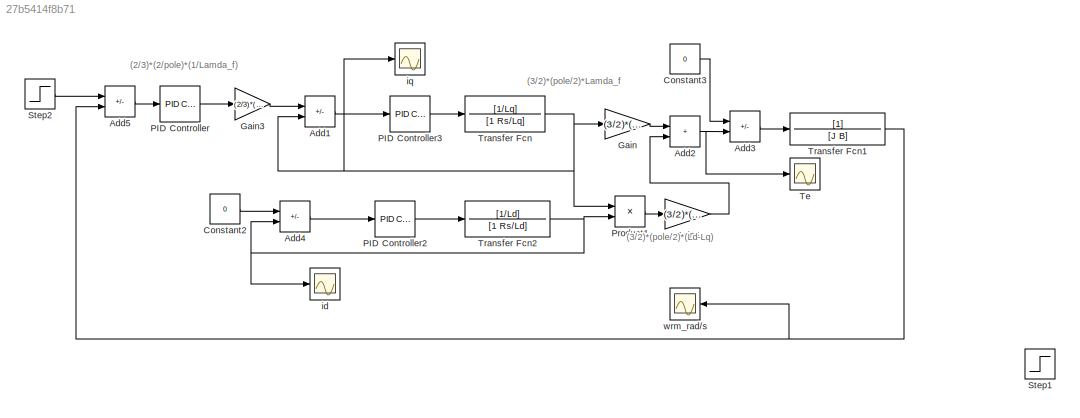
MODEL slx_27b5414f8b71
KIND model
CONFIG AbsTol = auto
CONFIG EnableMultiTasking = off
CONFIG FixedStep = 0.001
CONFIG MaxStep = auto
CONFIG MinStep = auto
CONFIG RelTol = 1e-3
CONFIG SampleTimeConstraint = Unconstrained
CONFIG SolverName = VariableStepAuto
CONFIG StartTime = 0.0
CONFIG StopTime = 1
BLOCK [Sum] Add1
  IconShape = rectangular
  Inputs = +-
BLOCK [Sum] Add2
  IconShape = rectangular
BLOCK [Sum] Add3
  IconShape = rectangular
  Inputs = -+
BLOCK [Sum] Add4
  IconShape = rectangular
  Inputs = +-
BLOCK [Sum] Add5
  IconShape = rectangular
  Inputs = +-
BLOCK [Constant] Constant2
  Value = 0
BLOCK [Constant] Constant3
  Value = 0
BLOCK [Gain] Gain
  Gain = (3/2)*(pole/2)*Lamda_f
BLOCK [Gain] Gain3
  Gain = (2/3)*(2/pole)*(1/Lamda_f)
BLOCK [Gain] Gain5
  Gain = (3/2)*(pole/2)*(Ld-Lq)
BLOCK [Reference] PID Controller  REF=slpidlib/PID Controller
  LibrarySourceBlock = simulink/Continuous/PID Controller
  SourceBlock = slpidlib/PID Controller
  SourceType = PID 1dof
BLOCK [Reference] PID Controller2  REF=slpidlib/PID Controller
  LibrarySourceBlock = simulink/Continuous/PID Controller
  SourceBlock = slpidlib/PID Controller
  SourceType = PID 1dof
BLOCK [Reference] PID Controller3  REF=slpidlib/PID Controller
  LibrarySourceBlock = simulink/Continuous/PID Controller
  SourceBlock = slpidlib/PID Controller
  SourceType = PID 1dof
BLOCK [Product] Product1
BLOCK [Step] Step1
  After = 1000
  SampleTime = 0
  Time = 0
BLOCK [Step] Step2
  After = 100
  SampleTime = 0
  Time = 0
BLOCK [Scope] Te
  Floating = off
  NumInputPorts = 1
  ScopeSpecificationString = Simulink.scopes.TimeScopeBlockCfg('CurrentConfiguration', extmgr.ConfigurationSet(extmgr.Configuration('Core','General UI',true,'FigureColor',[1 1 1]),extmgr.Configuration('Core','Source UI',true),extmgr.Configuration('Sources','WiredSimulink',true,'DataLoggingVariableName','ScopeData1'),extmgr.Configuration('Visuals','Time Domain',true,'SerializedDisplays',{struct('MinYLimReal','-0.27105','MaxYLi...<+1556ch>
BLOCK [TransferFcn] Transfer Fcn
  Denominator = [1 Rs/Lq]
  Numerator = [1/Lq]
BLOCK [TransferFcn] Transfer Fcn1
  Denominator = [J B]
BLOCK [TransferFcn] Transfer Fcn2
  Denominator = [1 Rs/Ld]
  Numerator = [1/Ld]
BLOCK [Scope] id
  Floating = off
  NumInputPorts = 1
  ScopeSpecificationString = Simulink.scopes.TimeScopeBlockCfg('CurrentConfiguration', extmgr.ConfigurationSet(extmgr.Configuration('Core','General UI',true,'FigureColor',[1 1 1]),extmgr.Configuration('Core','Source UI',true),extmgr.Configuration('Sources','WiredSimulink',true,'DataLoggingVariableName','ScopeData4'),extmgr.Configuration('Visuals','Time Domain',true,'SerializedDisplays',{struct('MinYLimReal','-1.00000','MaxYLi...<+1546ch>
BLOCK [Scope] iq
  Floating = off
  NumInputPorts = 1
  ScopeSpecificationString = Simulink.scopes.TimeScopeBlockCfg('CurrentConfiguration', extmgr.ConfigurationSet(extmgr.Configuration('Core','General UI',true,'FigureColor',[1 1 1]),extmgr.Configuration('Core','Source UI',true),extmgr.Configuration('Sources','WiredSimulink',true,'DataLoggingVariableName','ScopeData1'),extmgr.Configuration('Visuals','Time Domain',true,'SerializedDisplays',{struct('MinYLimReal','-140.59553','MaxY...<+1578ch>
BLOCK [Scope] wrm_rad//s
  Floating = off
  NameLocation = top
  NumInputPorts = 1
  ScopeSpecificationString = Simulink.scopes.TimeScopeBlockCfg('CurrentConfiguration', extmgr.ConfigurationSet(extmgr.Configuration('Core','General UI',true,'FigureColor',[1 1 1]),extmgr.Configuration('Core','Source UI',true),extmgr.Configuration('Sources','WiredSimulink',true),extmgr.Configuration('Visuals','Time Domain',true,'SerializedDisplays',{struct('MinYLimReal','-14.38515','MaxYLimReal','129.46634','YLabelReal','','Mi...<+1562ch>
ANNOTATION (root): (2/3)*(2/pole)*(1/Lamda_f)
ANNOTATION (root): (3/2)*(pole/2)*(Ld-Lq)
ANNOTATION (root): (3/2)*(pole/2)*Lamda_f
LINE Add1:1 -> PID Controller3:1
NET Add2:1 -> Add3:2, Te:1
LINE Add3:1 -> Transfer Fcn1:1
LINE Add4:1 -> PID Controller2:1
LINE Add5:1 -> PID Controller:1
LINE Constant2:1 -> Add4:1
LINE Constant3:1 -> Add3:1
LINE Gain3:1 -> Add1:1
LINE Gain5:1 -> Add2:2
LINE Gain:1 -> Add2:1
LINE PID Controller2:1 -> Transfer Fcn2:1
LINE PID Controller3:1 -> Transfer Fcn:1
LINE PID Controller:1 -> Gain3:1
LINE Product1:1 -> Gain5:1
LINE Step2:1 -> Add5:1
NET Transfer Fcn1:1 -> Add5:2, wrm_rad//s:1
NET Transfer Fcn2:1 -> Add4:2, Product1:2, id:1
NET Transfer Fcn:1 -> Add1:2, Gain:1, Product1:1, iq:1
note: NET lines group one-source signal fan-out (src -> all destinations, sorted); 1:1 wires keep LINE
